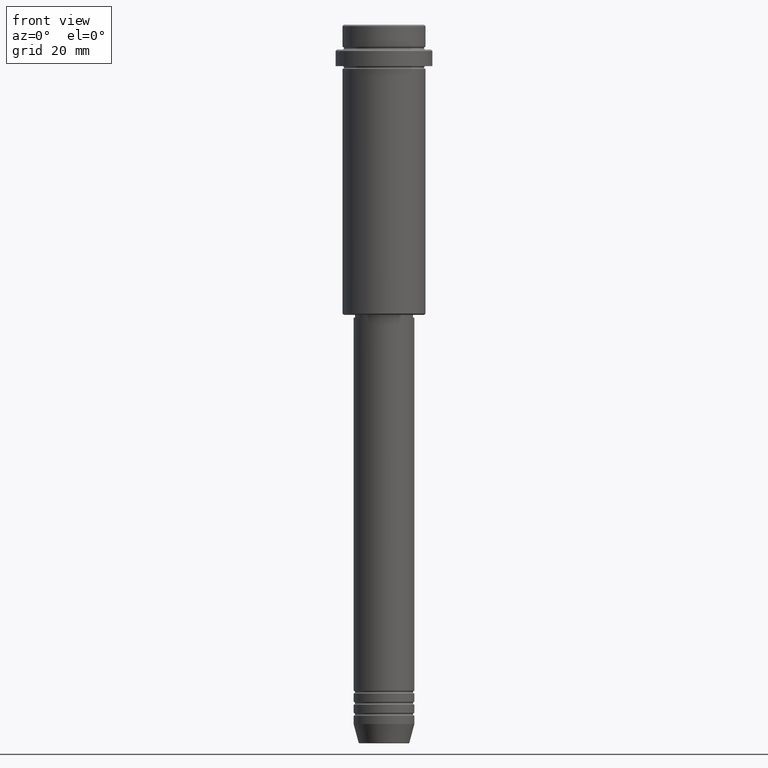
[diagram: clean part render]
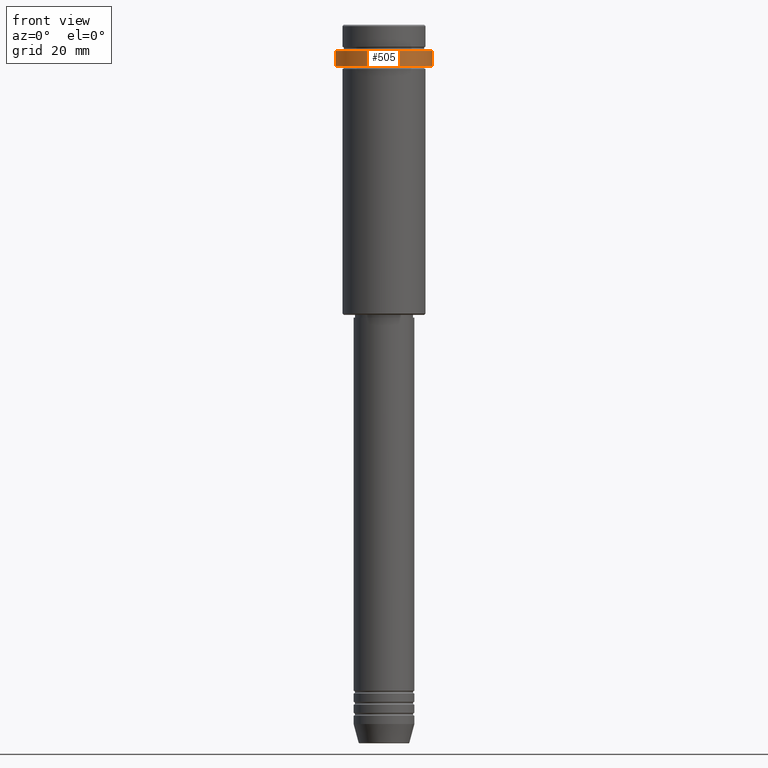
[diagram: same view with one face highlighted and labeled with its STEP entity id]
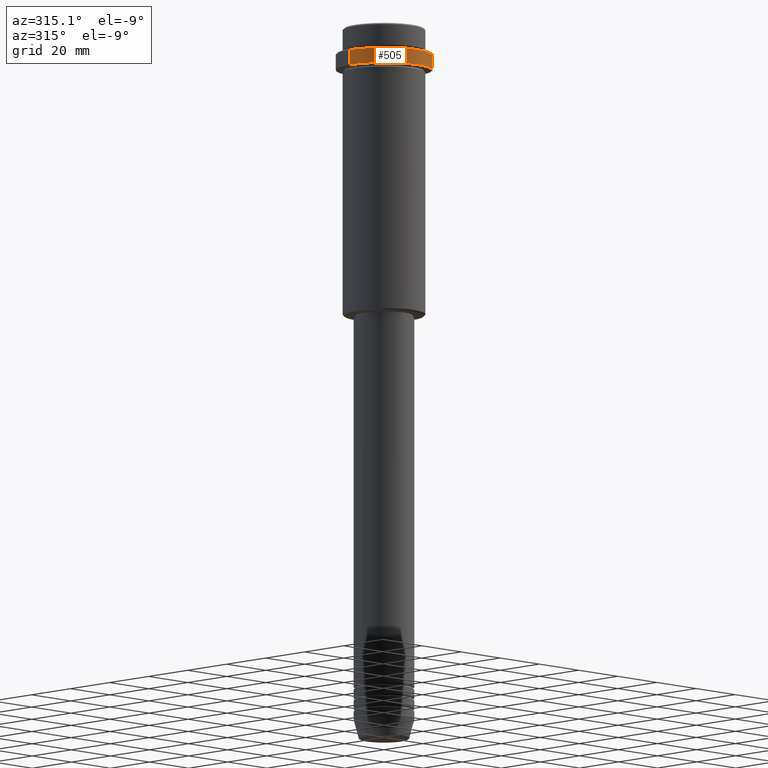
[diagram: same view with one face highlighted and labeled with its STEP entity id]
A machine part, front view. The second image highlights one B-rep face of the part: STEP entity #505.
A second angle (auxiliary view) of the same face is appended — the face is thin or edge-on in the first view.
In plain terms, the highlighted cylindrical surface (partial cylindrical patch) has radius 17.5 mm, axis along (-0, -0, 1).
Its self-contained STEP definition (entity closure, byte-faithful):
#6 = CARTESIAN_POINT ( 'NONE',  ( 17.50000000000000000, 0.000000000000000000, -15.00000000000000178 ) ) ;
#7 = EDGE_LOOP ( 'NONE', ( #1155, #209, #604, #1110 ) ) ;
#11 = CARTESIAN_POINT ( 'NONE',  ( -17.50000000000000000, 2.143131898507868248E-15, -9.500000000000001776 ) ) ;
#25 = CARTESIAN_POINT ( 'NONE',  ( 17.50000000000000000, 0.000000000000000000, 0.000000000000000000 ) ) ;
#58 = AXIS2_PLACEMENT_3D ( 'NONE', #614, #1362, #1033 ) ;
#122 = VERTEX_POINT ( 'NONE', #1331 ) ;
#169 = CARTESIAN_POINT ( 'NONE',  ( 0.000000000000000000, 0.000000000000000000, 0.000000000000000000 ) ) ;
#190 = DIRECTION ( 'NONE',  ( -0.000000000000000000, -0.000000000000000000, 1.000000000000000000 ) ) ;
#209 = ORIENTED_EDGE ( 'NONE', *, *, #865, .T. ) ;
#214 = VERTEX_POINT ( 'NONE', #6 ) ;
#252 = AXIS2_PLACEMENT_3D ( 'NONE', #815, #1282, #399 ) ;
#315 = CIRCLE ( 'NONE', #252, 17.50000000000000000 ) ;
#338 = VECTOR ( 'NONE', #1017, 1000.000000000000000 ) ;
#399 = DIRECTION ( 'NONE',  ( 1.000000000000000000, 0.000000000000000000, 0.000000000000000000 ) ) ;
#505 = ADVANCED_FACE ( 'NONE', ( #733 ), #1135, .T. ) ;
#546 = VERTEX_POINT ( 'NONE', #11 ) ;
#577 = CARTESIAN_POINT ( 'NONE',  ( -17.50000000000000000, 2.143131898507868248E-15, 0.000000000000000000 ) ) ;
#604 = ORIENTED_EDGE ( 'NONE', *, *, #773, .T. ) ;
#614 = CARTESIAN_POINT ( 'NONE',  ( 0.000000000000000000, 0.000000000000000000, -9.500000000000001776 ) ) ;
#620 = DIRECTION ( 'NONE',  ( 1.000000000000000000, 0.000000000000000000, 0.000000000000000000 ) ) ;
#694 = LINE ( 'NONE', #577, #338 ) ;
#733 = FACE_OUTER_BOUND ( 'NONE', #7, .T. ) ;
#773 = EDGE_CURVE ( 'NONE', #214, #122, #1128, .T. ) ;
#815 = CARTESIAN_POINT ( 'NONE',  ( 0.000000000000000000, 0.000000000000000000, -15.00000000000000178 ) ) ;
#817 = EDGE_CURVE ( 'NONE', #854, #546, #694, .T. ) ;
#854 = VERTEX_POINT ( 'NONE', #1055 ) ;
#865 = EDGE_CURVE ( 'NONE', #854, #214, #315, .T. ) ;
#879 = CIRCLE ( 'NONE', #58, 17.50000000000000000 ) ;
#897 = AXIS2_PLACEMENT_3D ( 'NONE', #169, #190, #620 ) ;
#947 = EDGE_CURVE ( 'NONE', #122, #546, #879, .T. ) ;
#993 = VECTOR ( 'NONE', #1335, 1000.000000000000000 ) ;
#1017 = DIRECTION ( 'NONE',  ( -0.000000000000000000, -0.000000000000000000, 1.000000000000000000 ) ) ;
#1033 = DIRECTION ( 'NONE',  ( 1.000000000000000000, 0.000000000000000000, 0.000000000000000000 ) ) ;
#1055 = CARTESIAN_POINT ( 'NONE',  ( -17.50000000000000000, 2.143131898507868248E-15, -15.00000000000000178 ) ) ;
#1110 = ORIENTED_EDGE ( 'NONE', *, *, #947, .T. ) ;
#1128 = LINE ( 'NONE', #25, #993 ) ;
#1135 = CYLINDRICAL_SURFACE ( 'NONE', #897, 17.50000000000000000 ) ;
#1155 = ORIENTED_EDGE ( 'NONE', *, *, #817, .F. ) ;
#1282 = DIRECTION ( 'NONE',  ( -0.000000000000000000, -0.000000000000000000, 1.000000000000000000 ) ) ;
#1331 = CARTESIAN_POINT ( 'NONE',  ( 17.50000000000000000, 0.000000000000000000, -9.500000000000001776 ) ) ;
#1335 = DIRECTION ( 'NONE',  ( -0.000000000000000000, -0.000000000000000000, 1.000000000000000000 ) ) ;
#1362 = DIRECTION ( 'NONE',  ( 0.000000000000000000, 0.000000000000000000, -1.000000000000000000 ) ) ;